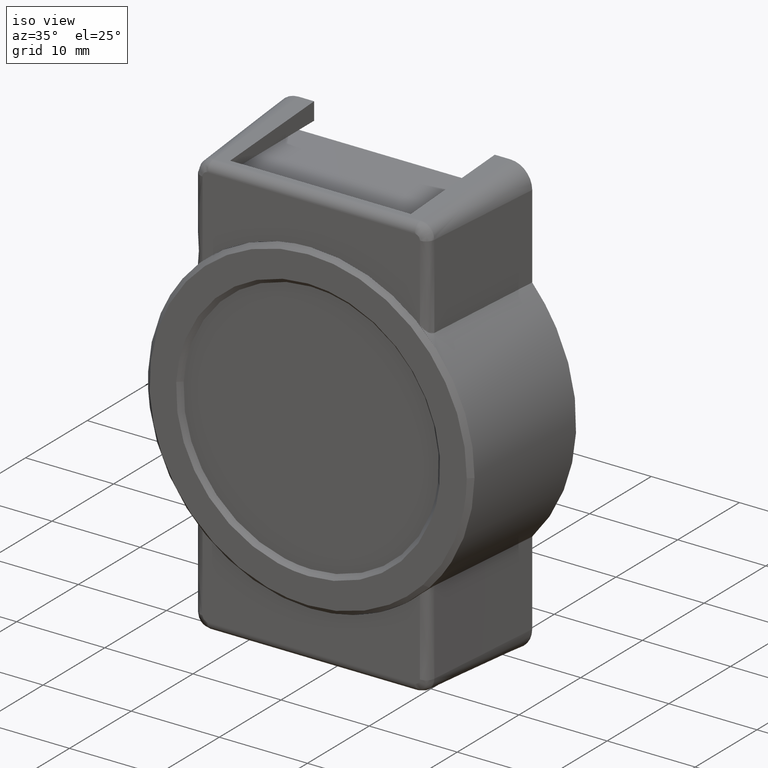
[diagram: clean part render]
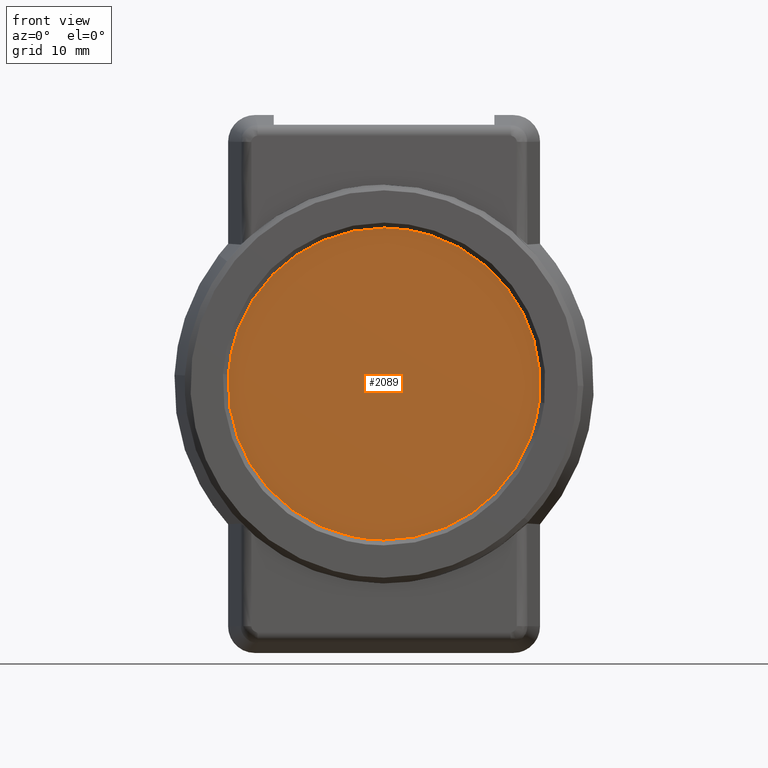
[diagram: tour spotlight — one face highlighted and labeled with its STEP entity id]
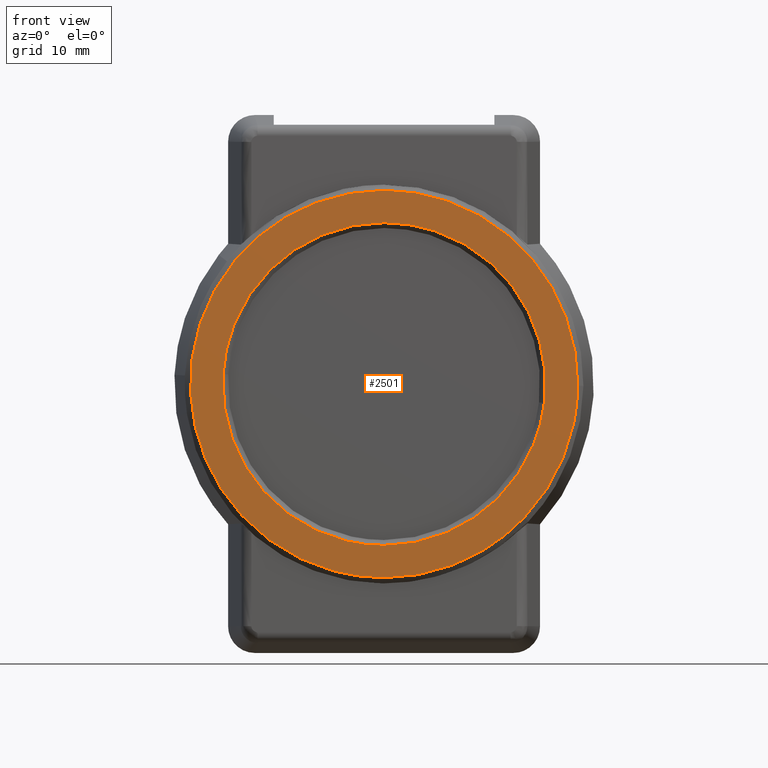
[diagram: tour spotlight — one face highlighted and labeled with its STEP entity id]
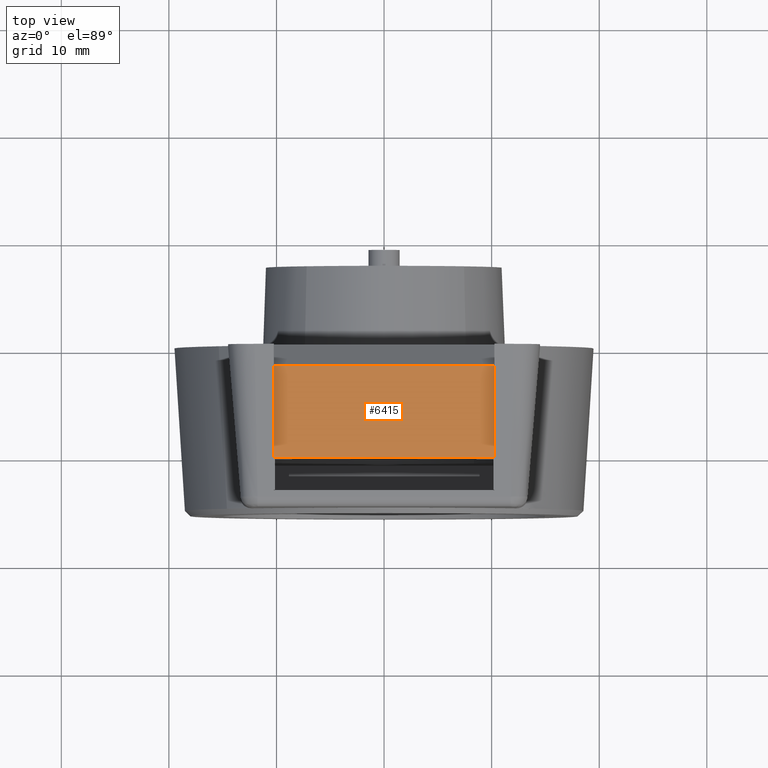
[diagram: tour spotlight — one face highlighted and labeled with its STEP entity id]
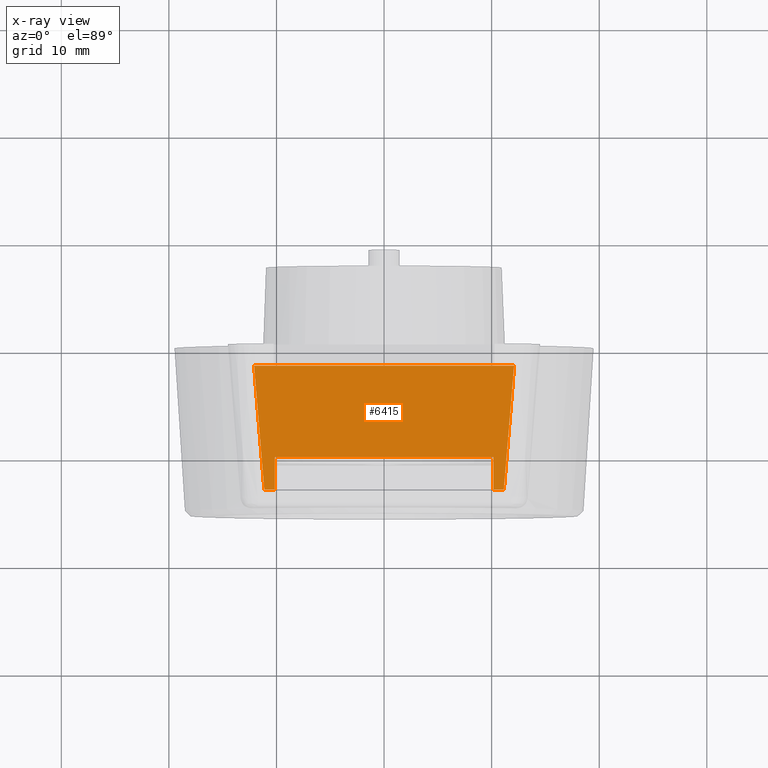
[diagram: x-ray of the same camera — body ghosted, this tour face saturated]
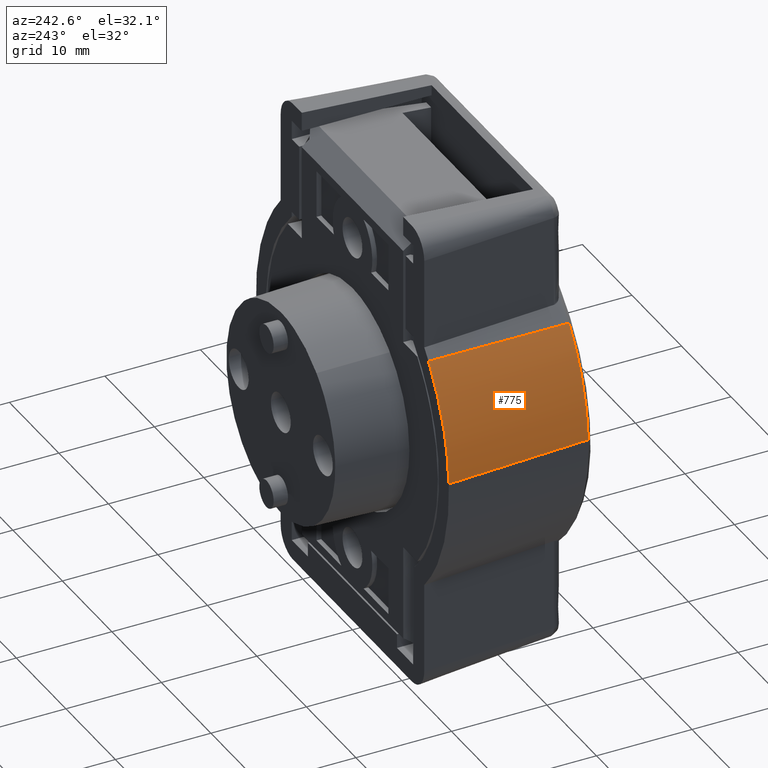
[diagram: tour spotlight — one face highlighted and labeled with its STEP entity id]
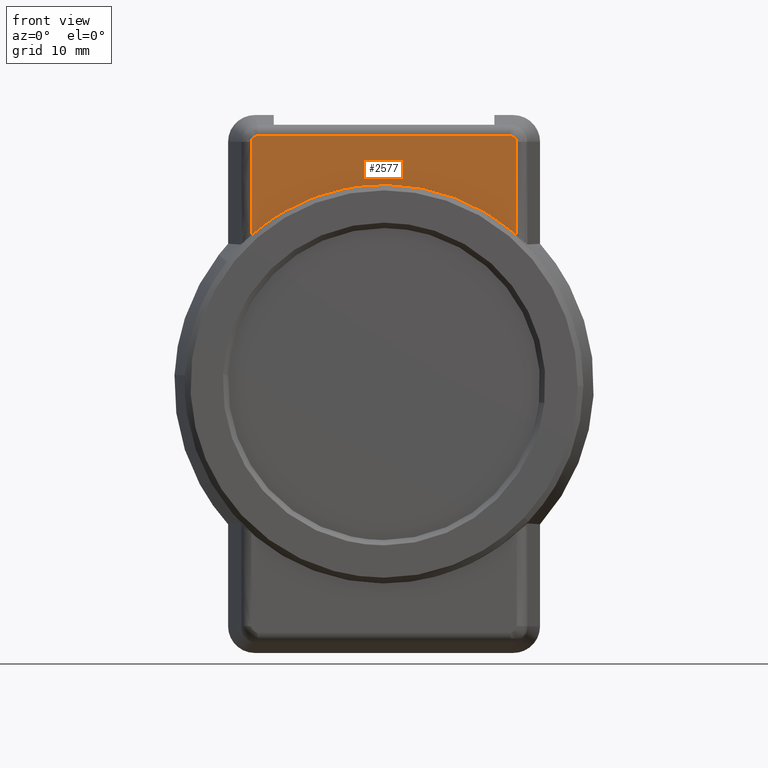
[diagram: tour spotlight — one face highlighted and labeled with its STEP entity id]
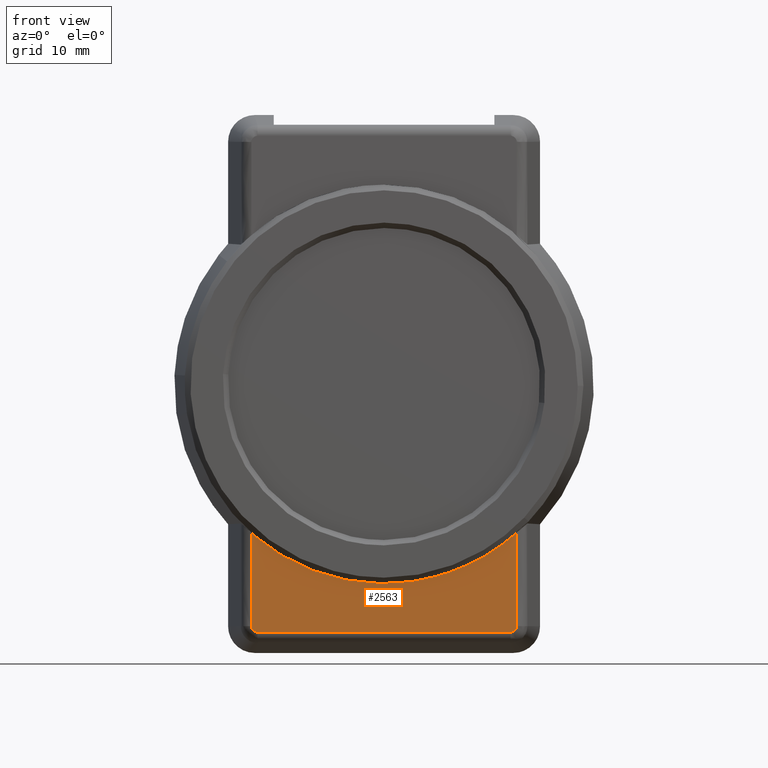
[diagram: tour spotlight — one face highlighted and labeled with its STEP entity id]
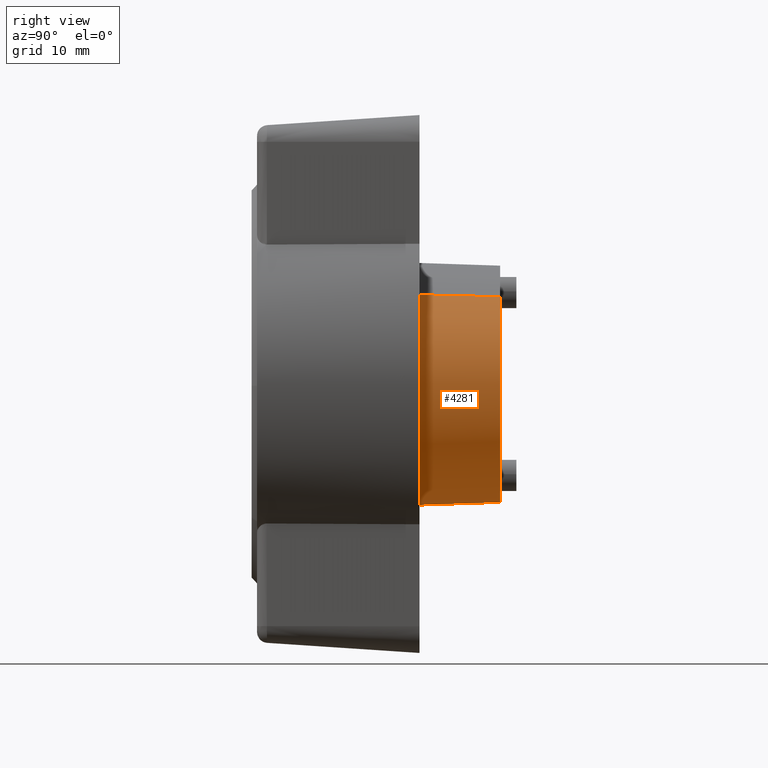
[diagram: tour spotlight — one face highlighted and labeled with its STEP entity id]
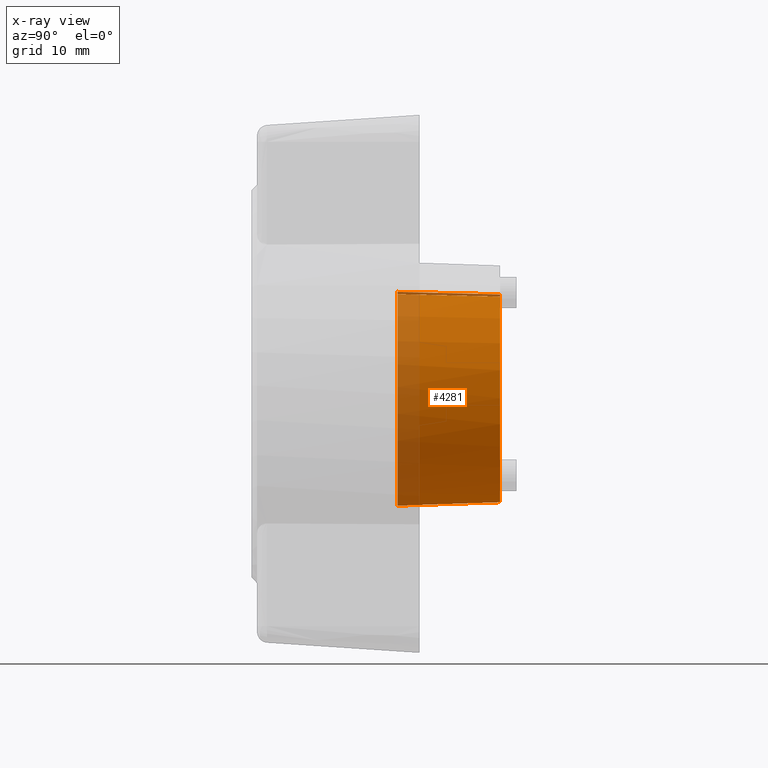
[diagram: x-ray of the same camera — body ghosted, this tour face saturated]
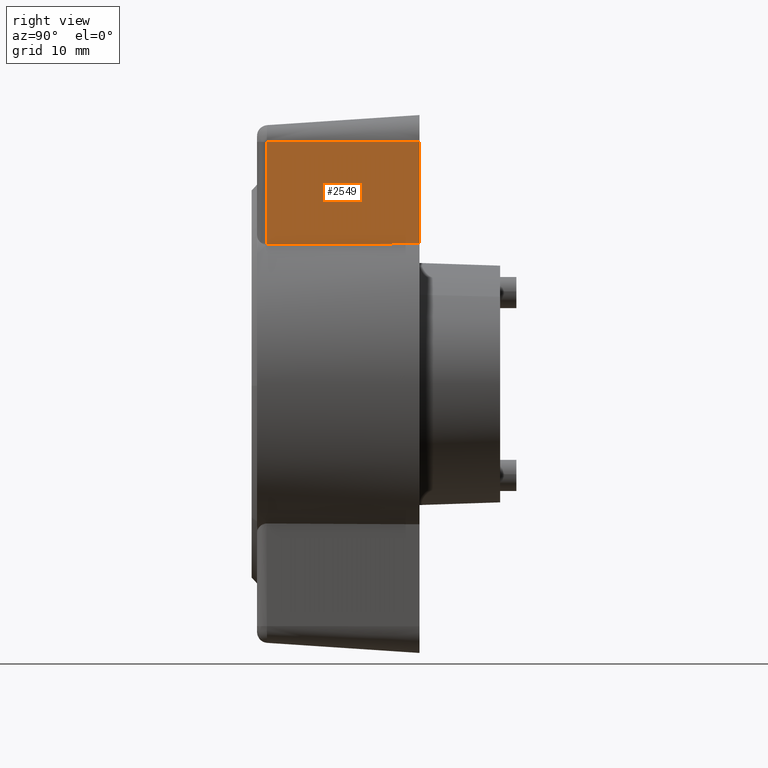
[diagram: tour spotlight — one face highlighted and labeled with its STEP entity id]
A machine part: a face-by-face anatomy tour. The part has 142 B-rep faces; the first image is the clean iso view, then the 8 largest visible faces are spotlighted one at a time (largest first), each with its STEP entity span.

Face 1 — front view, entity #2089. In plain terms, the highlighted face is a freeform B-spline surface patch.
Definition (entity closure, byte-faithful):
#282=CARTESIAN_POINT('',(15.100000000005901,-14.398638132273540,1.711496402569831));
#283=VERTEX_POINT('',#282);
#284=CARTESIAN_POINT('',(15.100000000000000,0.0,-14.500000000000000));
#285=VERTEX_POINT('',#284);
#286=CARTESIAN_POINT('',(15.100000000005910,-14.398638132273542,1.711496402569831));
#287=CARTESIAN_POINT('',(15.100000000000003,-14.500000000000000,0.858749734999319));
#288=CARTESIAN_POINT('',(15.100000000000000,-14.500000000000000,0.0));
#289=CARTESIAN_POINT('',(15.100000000000001,-14.500000000000000,-14.500000000000000));
#290=CARTESIAN_POINT('',(15.100000000000000,0.0,-14.500000000000000));
#298=(BOUNDED_CURVE()B_SPLINE_CURVE(2,(#286,#287,#288,#289,#290),.UNSPECIFIED.,.F.,.U.)B_SPLINE_CURVE_WITH_KNOTS((3,2,3),(0.229562473514561,0.250000000000000,0.500000000000000),.UNSPECIFIED.)CURVE()GEOMETRIC_REPRESENTATION_ITEM()RATIONAL_B_SPLINE_CURVE((0.956026754185763,0.976055948332379,1.0,0.707106781186548,1.0))REPRESENTATION_ITEM(''));
#299=EDGE_CURVE('',#283,#285,#298,.T.);
#340=CARTESIAN_POINT('',(15.100000000011439,14.472954577123209,-0.885203823342351));
#341=VERTEX_POINT('',#340);
#347=CARTESIAN_POINT('',(15.100000000000000,0.0,-14.500000000000000));
#348=CARTESIAN_POINT('',(15.100000000000001,13.640237969969810,-14.500000000000007));
#349=CARTESIAN_POINT('',(15.100000000011438,14.472954577123206,-0.885203823342351));
#357=(BOUNDED_CURVE()B_SPLINE_CURVE(2,(#347,#348,#349),.UNSPECIFIED.,.F.,.U.)B_SPLINE_CURVE_WITH_KNOTS((3,3),(0.500000000000000,0.739332962239913),.UNSPECIFIED.)CURVE()GEOMETRIC_REPRESENTATION_ITEM()RATIONAL_B_SPLINE_CURVE((1.0,0.719603993285573,0.976072041668797))REPRESENTATION_ITEM(''));
#358=EDGE_CURVE('',#285,#341,#357,.T.);
#381=CARTESIAN_POINT('',(15.100000000000000,0.0,14.500000000000000));
#382=VERTEX_POINT('',#381);
#383=CARTESIAN_POINT('',(15.100000000000000,0.0,14.500000000000000));
#384=CARTESIAN_POINT('',(15.099999999999998,-12.878530626211724,14.500000000000002));
#385=CARTESIAN_POINT('',(15.100000000005910,-14.398638132273542,1.711496402569831));
#393=(BOUNDED_CURVE()B_SPLINE_CURVE(2,(#383,#384,#385),.UNSPECIFIED.,.F.,.U.)B_SPLINE_CURVE_WITH_KNOTS((3,3),(0.0,0.229562473514561),.UNSPECIFIED.)CURVE()GEOMETRIC_REPRESENTATION_ITEM()RATIONAL_B_SPLINE_CURVE((1.0,0.731050832854169,0.956026754185763))REPRESENTATION_ITEM(''));
#394=EDGE_CURVE('',#382,#283,#393,.T.);
#396=CARTESIAN_POINT('',(15.100000000011434,14.472954577123211,-0.885203823342351));
#397=CARTESIAN_POINT('',(15.100000000000007,14.500000000000000,-0.443015067916008));
#398=CARTESIAN_POINT('',(15.100000000000000,14.500000000000000,0.0));
#399=CARTESIAN_POINT('',(15.100000000000001,14.500000000000000,14.500000000000000));
#400=CARTESIAN_POINT('',(15.100000000000000,0.0,14.500000000000000));
#408=(BOUNDED_CURVE()B_SPLINE_CURVE(2,(#396,#397,#398,#399,#400),.UNSPECIFIED.,.F.,.U.)B_SPLINE_CURVE_WITH_KNOTS((3,2,3),(0.739332962239912,0.750000000000000,1.0),.UNSPECIFIED.)CURVE()GEOMETRIC_REPRESENTATION_ITEM()RATIONAL_B_SPLINE_CURVE((0.976072041668795,0.987502787900973,1.0,0.707106781186548,1.0))REPRESENTATION_ITEM(''));
#409=EDGE_CURVE('',#341,#382,#408,.T.);
#2078=CARTESIAN_POINT('',(15.100000000000000,-15.948286491302390,15.948549943792370));
#2079=CARTESIAN_POINT('',(15.100000000000000,15.948197039631740,15.948549943792370));
#2080=CARTESIAN_POINT('',(15.100000000000000,-15.948286491302390,-15.948550721632991));
#2081=CARTESIAN_POINT('',(15.100000000000000,15.948197039631740,-15.948550721632991));
#2082=B_SPLINE_SURFACE_WITH_KNOTS('',1,1,((#2078,#2080),(#2079,#2081)),.UNSPECIFIED.,.F.,.F.,.U.,(2,2),(2,2),(0.0,31.896483530934120),(0.0,31.897100665425359),.UNSPECIFIED.);
#2083=ORIENTED_EDGE('',*,*,#394,.T.);
#2084=ORIENTED_EDGE('',*,*,#299,.T.);
#2085=ORIENTED_EDGE('',*,*,#358,.T.);
#2086=ORIENTED_EDGE('',*,*,#409,.T.);
#2087=EDGE_LOOP('',(#2083,#2084,#2085,#2086));
#2088=FACE_OUTER_BOUND('',#2087,.T.);
#2089=ADVANCED_FACE('',(#2088),#2082,.F.);

Face 2 — front view, entity #2501. In plain terms, the highlighted face is a freeform B-spline surface patch.
Definition (entity closure, byte-faithful):
#70=CARTESIAN_POINT('',(15.600000000000000,0.0,18.000000015181751));
#71=VERTEX_POINT('',#70);
#72=CARTESIAN_POINT('',(15.599999999999991,-13.034755842968490,12.413506380581680));
#73=VERTEX_POINT('',#72);
#74=CARTESIAN_POINT('',(15.600000000000000,0.0,18.000000015181751));
#75=CARTESIAN_POINT('',(15.599999999999996,-7.714520066123709,18.000000015181755));
#76=CARTESIAN_POINT('',(15.599999999999994,-13.034755842968488,12.413506380581676));
#84=(BOUNDED_CURVE()B_SPLINE_CURVE(2,(#74,#75,#76),.UNSPECIFIED.,.F.,.U.)B_SPLINE_CURVE_WITH_KNOTS((3,3),(0.500000000000000,0.628682976150469),.UNSPECIFIED.)CURVE()GEOMETRIC_REPRESENTATION_ITEM()RATIONAL_B_SPLINE_CURVE((1.0,0.849238515635177,0.853680523245777))REPRESENTATION_ITEM(''));
#85=EDGE_CURVE('',#71,#73,#84,.T.);
#87=CARTESIAN_POINT('',(15.600000000000000,0.0,-18.000000015181751));
#88=VERTEX_POINT('',#87);
#89=CARTESIAN_POINT('',(15.600000000000000,0.0,-18.000000015181751));
#90=CARTESIAN_POINT('',(15.599999999999998,18.000000015181744,-18.000000015181744));
#91=CARTESIAN_POINT('',(15.600000000000000,18.000000015181751,0.0));
#92=CARTESIAN_POINT('',(15.599999999999998,18.000000015181744,18.000000015181744));
#93=CARTESIAN_POINT('',(15.600000000000000,0.0,18.000000015181751));
#101=(BOUNDED_CURVE()B_SPLINE_CURVE(2,(#89,#90,#91,#92,#93),.UNSPECIFIED.,.F.,.U.)B_SPLINE_CURVE_WITH_KNOTS((3,2,3),(0.0,0.250000000000000,0.500000000000000),.UNSPECIFIED.)CURVE()GEOMETRIC_REPRESENTATION_ITEM()RATIONAL_B_SPLINE_CURVE((1.0,0.707106781186547,1.0,0.707106781186547,1.0))REPRESENTATION_ITEM(''));
#102=EDGE_CURVE('',#88,#71,#101,.T.);
#104=CARTESIAN_POINT('',(15.599999999991510,-17.999314630344742,0.157077639168477));
#105=VERTEX_POINT('',#104);
#106=CARTESIAN_POINT('',(15.599999999991507,-17.999314630344731,0.157077639168477));
#107=CARTESIAN_POINT('',(15.600000000000001,-18.000000015181755,0.078540314904058));
#108=CARTESIAN_POINT('',(15.600000000000000,-18.000000015181751,0.0));
#109=CARTESIAN_POINT('',(15.599999999999998,-18.000000015181744,-18.000000015181744));
#110=CARTESIAN_POINT('',(15.600000000000000,0.0,-18.000000015181751));
#118=(BOUNDED_CURVE()B_SPLINE_CURVE(2,(#106,#107,#108,#109,#110),.UNSPECIFIED.,.F.,.U.)B_SPLINE_CURVE_WITH_KNOTS((3,2,3),(0.748460105663737,0.750000000000000,1.0),.UNSPECIFIED.)CURVE()GEOMETRIC_REPRESENTATION_ITEM()RATIONAL_B_SPLINE_CURVE((0.996414028097453,0.998195901564877,1.0,0.707106781186547,1.0))REPRESENTATION_ITEM(''));
#119=EDGE_CURVE('',#105,#88,#118,.T.);
#229=CARTESIAN_POINT('',(15.599999999999994,-13.034755842968488,12.413506380581676));
#230=CARTESIAN_POINT('',(15.600000000000005,-17.937279233019702,7.265630071941504));
#231=CARTESIAN_POINT('',(15.599999999991507,-17.999314630344735,0.157077639168477));
#239=(BOUNDED_CURVE()B_SPLINE_CURVE(2,(#229,#230,#231),.UNSPECIFIED.,.F.,.U.)B_SPLINE_CURVE_WITH_KNOTS((3,3),(0.628682976150469,0.748460105663737),.UNSPECIFIED.)CURVE()GEOMETRIC_REPRESENTATION_ITEM()RATIONAL_B_SPLINE_CURVE((0.853680523245777,0.857815109939293,0.996414028097453))REPRESENTATION_ITEM(''));
#240=EDGE_CURVE('',#73,#105,#239,.T.);
#301=CARTESIAN_POINT('',(15.600000000008359,-14.895142895455569,1.770513519917547));
#302=VERTEX_POINT('',#301);
#308=CARTESIAN_POINT('',(15.600000000000000,0.0,-15.0));
#309=VERTEX_POINT('',#308);
#310=CARTESIAN_POINT('',(15.600000000008365,-14.895142895455576,1.770513519917547));
#311=CARTESIAN_POINT('',(15.600000000000003,-15.000000000000002,0.888361794844521));
#312=CARTESIAN_POINT('',(15.600000000000000,-15.0,0.0));
#313=CARTESIAN_POINT('',(15.599999999999998,-14.999999999999996,-14.999999999999996));
#314=CARTESIAN_POINT('',(15.600000000000000,0.0,-15.0));
#322=(BOUNDED_CURVE()B_SPLINE_CURVE(2,(#310,#311,#312,#313,#314),.UNSPECIFIED.,.F.,.U.)B_SPLINE_CURVE_WITH_KNOTS((3,2,3),(0.229562473514165,0.250000000000000,0.500000000000000),.UNSPECIFIED.)CURVE()GEOMETRIC_REPRESENTATION_ITEM()RATIONAL_B_SPLINE_CURVE((0.956026754184987,0.976055948331915,1.0,0.707106781186547,1.0))REPRESENTATION_ITEM(''));
#323=EDGE_CURVE('',#302,#309,#322,.T.);
#325=CARTESIAN_POINT('',(15.600000000008070,14.972021976332361,-0.915728093084173));
#326=VERTEX_POINT('',#325);
#327=CARTESIAN_POINT('',(15.600000000000000,0.0,-15.0));
#328=CARTESIAN_POINT('',(15.599999999999996,14.110591003470534,-15.000000000000002));
#329=CARTESIAN_POINT('',(15.600000000008071,14.972021976332364,-0.915728093084173));
#337=(BOUNDED_CURVE()B_SPLINE_CURVE(2,(#327,#328,#329),.UNSPECIFIED.,.F.,.U.)B_SPLINE_CURVE_WITH_KNOTS((3,3),(0.500000000000000,0.739332962240566),.UNSPECIFIED.)CURVE()GEOMETRIC_REPRESENTATION_ITEM()RATIONAL_B_SPLINE_CURVE((1.0,0.719603993284809,0.976072041670196))REPRESENTATION_ITEM(''));
#338=EDGE_CURVE('',#309,#326,#337,.T.);
#412=CARTESIAN_POINT('',(15.600000000000000,0.0,15.0));
#413=VERTEX_POINT('',#412);
#414=CARTESIAN_POINT('',(15.600000000008070,14.972021976332366,-0.915728093084173));
#415=CARTESIAN_POINT('',(15.600000000000007,15.000000000000002,-0.458291449539829));
#416=CARTESIAN_POINT('',(15.600000000000000,15.0,0.0));
#417=CARTESIAN_POINT('',(15.599999999999998,14.999999999999996,14.999999999999996));
#418=CARTESIAN_POINT('',(15.600000000000000,0.0,15.0));
#426=(BOUNDED_CURVE()B_SPLINE_CURVE(2,(#414,#415,#416,#417,#418),.UNSPECIFIED.,.F.,.U.)B_SPLINE_CURVE_WITH_KNOTS((3,2,3),(0.739332962240566,0.750000000000000,1.0),.UNSPECIFIED.)CURVE()GEOMETRIC_REPRESENTATION_ITEM()RATIONAL_B_SPLINE_CURVE((0.976072041670197,0.987502787901739,1.0,0.707106781186547,1.0))REPRESENTATION_ITEM(''));
#427=EDGE_CURVE('',#326,#413,#426,.T.);
#429=CARTESIAN_POINT('',(15.600000000000000,0.0,15.0));
#430=CARTESIAN_POINT('',(15.600000000000007,-13.322617889153088,14.999999999999993));
#431=CARTESIAN_POINT('',(15.600000000008359,-14.895142895455580,1.770513519917547));
#439=(BOUNDED_CURVE()B_SPLINE_CURVE(2,(#429,#430,#431),.UNSPECIFIED.,.F.,.U.)B_SPLINE_CURVE_WITH_KNOTS((3,3),(0.0,0.229562473514165),.UNSPECIFIED.)CURVE()GEOMETRIC_REPRESENTATION_ITEM()RATIONAL_B_SPLINE_CURVE((1.0,0.731050832854633,0.956026754184987))REPRESENTATION_ITEM(''));
#440=EDGE_CURVE('',#413,#302,#439,.T.);
#2484=CARTESIAN_POINT('',(15.600000000000000,-19.797481143772728,-19.798199946923418));
#2485=CARTESIAN_POINT('',(15.600000000000000,19.798166716397510,-19.798199946923418));
#2486=CARTESIAN_POINT('',(15.600000000000000,-19.797481143772728,19.798200912518670));
#2487=CARTESIAN_POINT('',(15.600000000000000,19.798166716397510,19.798200912518670));
#2488=B_SPLINE_SURFACE_WITH_KNOTS('',1,1,((#2484,#2486),(#2485,#2487)),.UNSPECIFIED.,.F.,.F.,.U.,(2,2),(2,2),(0.0,39.595647860170253),(0.0,39.596400859442092),.UNSPECIFIED.);
#2489=ORIENTED_EDGE('',*,*,#102,.T.);
#2490=ORIENTED_EDGE('',*,*,#85,.T.);
#2491=ORIENTED_EDGE('',*,*,#240,.T.);
#2492=ORIENTED_EDGE('',*,*,#119,.T.);
#2493=EDGE_LOOP('',(#2489,#2490,#2491,#2492));
#2494=FACE_OUTER_BOUND('',#2493,.T.);
#2495=ORIENTED_EDGE('',*,*,#338,.F.);
#2496=ORIENTED_EDGE('',*,*,#323,.F.);
#2497=ORIENTED_EDGE('',*,*,#440,.F.);
#2498=ORIENTED_EDGE('',*,*,#427,.F.);
#2499=EDGE_LOOP('',(#2495,#2496,#2497,#2498));
#2500=FACE_BOUND('',#2499,.T.);
#2501=ADVANCED_FACE('',(#2494,#2500),#2488,.T.);

Face 3 — top view, entity #6415. An x-ray twin of the same camera follows (body ghosted, this face saturated) — the face is partly hidden behind the body. In plain terms, the highlighted face is a freeform B-spline surface patch.
Definition (entity closure, byte-faithful):
#6301=CARTESIAN_POINT('',(1.999999999999975,12.084438020025299,-22.750000000000000));
#6302=VERTEX_POINT('',#6301);
#6303=CARTESIAN_POINT('',(1.999999999999975,-12.084438020025480,-22.750000000000000));
#6304=VERTEX_POINT('',#6303);
#6305=CARTESIAN_POINT('',(1.999999999999975,12.084438020025299,-22.750000000000000));
#6306=CARTESIAN_POINT('',(1.999999999999975,-12.084438020025480,-22.750000000000000));
#6307=QUASI_UNIFORM_CURVE('',1,(#6305,#6306),.UNSPECIFIED.,.F.,.U.);
#6308=EDGE_CURVE('',#6302,#6304,#6307,.T.);
#6360=CARTESIAN_POINT('',(14.074424977710770,-13.291673785142271,-21.700050001938202));
#6361=CARTESIAN_POINT('',(1.425574713835168,-13.291673785142271,-22.799950024883898));
#6362=CARTESIAN_POINT('',(14.074424977710770,13.291674001228690,-21.700050001938202));
#6363=CARTESIAN_POINT('',(1.425574713835168,13.291674001228690,-22.799950024883898));
#6364=B_SPLINE_SURFACE_WITH_KNOTS('',1,1,((#6360,#6362),(#6361,#6363)),.UNSPECIFIED.,.F.,.F.,.U.,(2,2),(2,2),(0.0,12.696581943910020),(0.0,26.583347786370961),.UNSPECIFIED.);
#6365=CARTESIAN_POINT('',(13.500000000000000,-11.132456635171360,-21.750000000000000));
#6366=VERTEX_POINT('',#6365);
#6367=CARTESIAN_POINT('',(13.500000000000000,-11.132456635171360,-21.750000000000000));
#6368=CARTESIAN_POINT('',(1.999999999999975,-12.084438020025480,-22.750000000000000));
#6369=QUASI_UNIFORM_CURVE('',1,(#6367,#6368),.UNSPECIFIED.,.F.,.U.);
#6370=EDGE_CURVE('',#6366,#6304,#6369,.T.);
#6371=ORIENTED_EDGE('',*,*,#6370,.T.);
#6372=ORIENTED_EDGE('',*,*,#6308,.F.);
#6373=CARTESIAN_POINT('',(13.500000000000000,11.132456635171360,-21.750000000000000));
#6374=VERTEX_POINT('',#6373);
#6375=CARTESIAN_POINT('',(13.500000000000000,11.132456635171360,-21.750000000000000));
#6376=CARTESIAN_POINT('',(1.999999999999975,12.084438020025299,-22.750000000000000));
#6377=QUASI_UNIFORM_CURVE('',1,(#6375,#6376),.UNSPECIFIED.,.F.,.U.);
#6378=EDGE_CURVE('',#6374,#6302,#6377,.T.);
#6379=ORIENTED_EDGE('',*,*,#6378,.F.);
#6380=CARTESIAN_POINT('',(13.500000000000000,10.150000000000000,-21.750000000000000));
#6381=VERTEX_POINT('',#6380);
#6382=CARTESIAN_POINT('',(13.500000000000000,11.132456635171360,-21.750000000000000));
#6383=CARTESIAN_POINT('',(13.500000000000000,10.150000000000000,-21.750000000000000));
#6384=QUASI_UNIFORM_CURVE('',1,(#6382,#6383),.UNSPECIFIED.,.F.,.U.);
#6385=EDGE_CURVE('',#6374,#6381,#6384,.T.);
#6386=ORIENTED_EDGE('',*,*,#6385,.T.);
#6387=CARTESIAN_POINT('',(10.500000000000000,10.150000000000000,-22.010869565217352));
#6388=VERTEX_POINT('',#6387);
#6389=CARTESIAN_POINT('',(13.500000000000000,10.150000000000000,-21.750000000000000));
#6390=CARTESIAN_POINT('',(10.500000000000000,10.150000000000000,-22.010869565217352));
#6391=QUASI_UNIFORM_CURVE('',1,(#6389,#6390),.UNSPECIFIED.,.F.,.U.);
#6392=EDGE_CURVE('',#6381,#6388,#6391,.T.);
#6393=ORIENTED_EDGE('',*,*,#6392,.T.);
#6394=CARTESIAN_POINT('',(10.500000000000000,-10.149800000000001,-22.010869565217352));
#6395=VERTEX_POINT('',#6394);
#6396=CARTESIAN_POINT('',(10.500000000000000,10.150000000000000,-22.010869565217352));
#6397=CARTESIAN_POINT('',(10.500000000000000,-10.149800000000001,-22.010869565217352));
#6398=QUASI_UNIFORM_CURVE('',1,(#6396,#6397),.UNSPECIFIED.,.F.,.U.);
#6399=EDGE_CURVE('',#6388,#6395,#6398,.T.);
#6400=ORIENTED_EDGE('',*,*,#6399,.T.);
#6401=CARTESIAN_POINT('',(13.500000000000000,-10.149800000000001,-21.750000000000000));
#6402=VERTEX_POINT('',#6401);
#6403=CARTESIAN_POINT('',(10.500000000000000,-10.149800000000001,-22.010869565217352));
#6404=CARTESIAN_POINT('',(13.500000000000000,-10.149800000000001,-21.750000000000000));
#6405=QUASI_UNIFORM_CURVE('',1,(#6403,#6404),.UNSPECIFIED.,.F.,.U.);
#6406=EDGE_CURVE('',#6395,#6402,#6405,.T.);
#6407=ORIENTED_EDGE('',*,*,#6406,.T.);
#6408=CARTESIAN_POINT('',(13.500000000000000,-10.149800000000001,-21.750000000000000));
#6409=CARTESIAN_POINT('',(13.500000000000000,-11.132456635171360,-21.750000000000000));
#6410=QUASI_UNIFORM_CURVE('',1,(#6408,#6409),.UNSPECIFIED.,.F.,.U.);
#6411=EDGE_CURVE('',#6402,#6366,#6410,.T.);
#6412=ORIENTED_EDGE('',*,*,#6411,.T.);
#6413=EDGE_LOOP('',(#6371,#6372,#6379,#6386,#6393,#6400,#6407,#6412));
#6414=FACE_OUTER_BOUND('',#6413,.T.);
#6415=ADVANCED_FACE('',(#6414),#6364,.T.);

Face 4 — auxiliary view, entity #775. In plain terms, the highlighted face is a freeform B-spline surface patch.
Definition (entity closure, byte-faithful):
#145=CARTESIAN_POINT('',(15.101027880630079,14.605309291225071,-11.406990121480259));
#146=VERTEX_POINT('',#145);
#160=CARTESIAN_POINT('',(15.101026955833030,18.514881455720001,-0.796021357418390));
#161=VERTEX_POINT('',#160);
#162=CARTESIAN_POINT('',(15.101026955833035,18.514881455720001,-0.796021357418390));
#163=CARTESIAN_POINT('',(15.101027418231551,18.259853999387865,-6.727775503855035));
#164=CARTESIAN_POINT('',(15.101027880630078,14.605309291225065,-11.406990121480259));
#172=(BOUNDED_CURVE()B_SPLINE_CURVE(2,(#162,#163,#164),.UNSPECIFIED.,.F.,.U.)B_SPLINE_CURVE_WITH_KNOTS((3,3),(0.257529741254510,0.356517249436657),.UNSPECIFIED.)CURVE()GEOMETRIC_REPRESENTATION_ITEM()RATIONAL_B_SPLINE_CURVE((0.982888116147030,0.873902894349520,0.856755178058724))REPRESENTATION_ITEM(''));
#173=EDGE_CURVE('',#161,#146,#172,.T.);
#477=CARTESIAN_POINT('',(0.000002613138607,19.482001581067902,-0.837620356976103));
#478=VERTEX_POINT('',#477);
#479=CARTESIAN_POINT('',(15.101026955833030,18.514881455720001,-0.796021357418390));
#480=CARTESIAN_POINT('',(0.000002613138607,19.482001581067902,-0.837620356976103));
#481=QUASI_UNIFORM_CURVE('',1,(#479,#480),.UNSPECIFIED.,.F.,.U.);
#482=EDGE_CURVE('',#161,#478,#481,.T.);
#716=CARTESIAN_POINT('',(0.000000322504653,15.368211329090830,-12.002836320559391));
#717=VERTEX_POINT('',#716);
#731=CARTESIAN_POINT('',(15.101027880630079,14.605309291225071,-11.406990121480259));
#732=CARTESIAN_POINT('',(0.000000322504653,15.368211329090830,-12.002836320559391));
#733=QUASI_UNIFORM_CURVE('',1,(#731,#732),.UNSPECIFIED.,.F.,.U.);
#734=EDGE_CURVE('',#146,#717,#733,.T.);
#739=CARTESIAN_POINT('',(15.478549732748686,18.492949581332944,-0.742743409091097));
#740=CARTESIAN_POINT('',(15.478549732748677,18.491826885747436,-0.768855931270664));
#741=CARTESIAN_POINT('',(15.478549732748677,18.236003270144554,-6.718999427651289));
#742=CARTESIAN_POINT('',(15.478549732748682,14.567485163414602,-11.416103545355952));
#743=CARTESIAN_POINT('',(15.478549732748679,14.548730562831665,-11.440116596146799));
#744=CARTESIAN_POINT('',(-0.386963743318719,19.509154424548321,-0.783557852793824));
#745=CARTESIAN_POINT('',(-0.386963743318718,19.507970035792308,-0.811105282443977));
#746=CARTESIAN_POINT('',(-0.386963743318718,19.238088673693063,-7.088214718587501));
#747=CARTESIAN_POINT('',(-0.386963743318718,15.367982072327008,-12.043429092447111));
#748=CARTESIAN_POINT('',(-0.386963743318718,15.348196888934053,-12.068761682795815));
#756=(BOUNDED_SURFACE()B_SPLINE_SURFACE(2,1,((#739,#744),(#740,#745),(#741,#746),(#742,#747),(#743,#748)),.UNSPECIFIED.,.F.,.F.,.U.)B_SPLINE_SURFACE_WITH_KNOTS((3,1,1,3),(2,2),(0.0,0.064314814441409,12.923028356025560,12.987323780913870),(0.0,15.898077207977570),.UNSPECIFIED.)GEOMETRIC_REPRESENTATION_ITEM()RATIONAL_B_SPLINE_SURFACE(((1.001171960038348,1.001171960038348),(1.000585980019174,1.000585980019174),(0.882842712474619,0.882842712474619),(0.859294094297819,0.859294094297819),(0.859176933626094,0.859176933626094)))REPRESENTATION_ITEM('')SURFACE());
#757=ORIENTED_EDGE('',*,*,#173,.T.);
#758=ORIENTED_EDGE('',*,*,#734,.T.);
#759=CARTESIAN_POINT('',(0.000000322504653,15.368211329090832,-12.002836320559382));
#760=CARTESIAN_POINT('',(0.000001467821630,19.213647134893662,-7.079210798616050));
#761=CARTESIAN_POINT('',(0.000002613138607,19.482001581067895,-0.837620356976103));
#769=(BOUNDED_CURVE()B_SPLINE_CURVE(2,(#759,#760,#761),.UNSPECIFIED.,.F.,.U.)B_SPLINE_CURVE_WITH_KNOTS((3,3),(0.051173309590706,0.471983908225164),.UNSPECIFIED.)CURVE()GEOMETRIC_REPRESENTATION_ITEM()RATIONAL_B_SPLINE_CURVE((0.975100204114749,0.878243266538206,0.872197385332480))REPRESENTATION_ITEM(''));
#770=EDGE_CURVE('',#717,#478,#769,.T.);
#771=ORIENTED_EDGE('',*,*,#770,.T.);
#772=ORIENTED_EDGE('',*,*,#482,.F.);
#773=EDGE_LOOP('',(#757,#758,#771,#772));
#774=FACE_OUTER_BOUND('',#773,.T.);
#775=ADVANCED_FACE('',(#774),#756,.T.);

Face 5 — front view, entity #2577. In plain terms, the highlighted face is a freeform B-spline surface patch.
Definition (entity closure, byte-faithful):
#630=CARTESIAN_POINT('',(15.100000000000000,-12.329367544924621,-13.835592549919941));
#631=VERTEX_POINT('',#630);
#659=CARTESIAN_POINT('',(15.100000000000000,12.329367544924621,-13.835592549919960));
#660=VERTEX_POINT('',#659);
#661=CARTESIAN_POINT('',(15.100000000000000,-12.329367544924640,-13.835592549919960));
#662=CARTESIAN_POINT('',(15.100000000000005,-1.528363E-014,-24.822711714449014));
#663=CARTESIAN_POINT('',(15.100000000000000,12.329367544924629,-13.835592549919980));
#671=(BOUNDED_CURVE()B_SPLINE_CURVE(2,(#661,#662,#663),.UNSPECIFIED.,.F.,.U.)CURVE()GEOMETRIC_REPRESENTATION_ITEM()QUASI_UNIFORM_CURVE()RATIONAL_B_SPLINE_CURVE((1.0,0.746576422025606,1.0))REPRESENTATION_ITEM(''));
#672=EDGE_CURVE('',#631,#660,#671,.T.);
#856=CARTESIAN_POINT('',(15.100000000000000,-12.329367544924621,-22.504391323943601));
#857=VERTEX_POINT('',#856);
#912=CARTESIAN_POINT('',(15.100000000000000,-11.769492727107981,-23.064180374541650));
#913=VERTEX_POINT('',#912);
#927=CARTESIAN_POINT('',(15.100000000000000,-12.329367544924621,-22.504391323943601));
#928=CARTESIAN_POINT('',(15.100000000000010,-12.329367544924621,-22.541338459476069));
#929=CARTESIAN_POINT('',(15.100000000000010,-12.325702628734510,-22.577876547202489));
#930=CARTESIAN_POINT('',(15.100000000000010,-12.311143935628820,-22.650145896669041));
#931=CARTESIAN_POINT('',(15.100000000000010,-12.300326595793241,-22.685289790405889));
#932=CARTESIAN_POINT('',(15.100000000000010,-12.279284148694019,-22.735696123779270));
#933=CARTESIAN_POINT('',(15.100000000000000,-12.271451579797411,-22.752160061605569));
#934=CARTESIAN_POINT('',(15.100000000000000,-12.254127888079500,-22.784402618296710));
#935=CARTESIAN_POINT('',(15.100000000000000,-12.244577236302661,-22.800265201591749));
#936=CARTESIAN_POINT('',(15.100000000000010,-12.213832881846191,-22.846059800428240));
#937=CARTESIAN_POINT('',(15.100000000000000,-12.190648172778699,-22.874186101895290));
#938=CARTESIAN_POINT('',(15.100000000000000,-12.139036577604610,-22.925752322489618));
#939=CARTESIAN_POINT('',(15.100000000000000,-12.110267202735200,-22.949372723645489));
#940=CARTESIAN_POINT('',(15.100000000000000,-12.049493629092810,-22.990010212532930));
#941=CARTESIAN_POINT('',(15.100000000000000,-12.017390991615301,-23.007230685228429));
#942=CARTESIAN_POINT('',(15.100000000000000,-11.966632669739830,-23.028358751582939));
#943=CARTESIAN_POINT('',(15.100000000000000,-11.949182933062589,-23.034634735488879));
#944=CARTESIAN_POINT('',(15.100000000000000,-11.914064383578090,-23.045336317760640));
#945=CARTESIAN_POINT('',(15.100000000000010,-11.896351828559411,-23.049790713315168));
#946=CARTESIAN_POINT('',(15.100000000000010,-11.842763351792010,-23.060517516254109));
#947=CARTESIAN_POINT('',(15.100000000000000,-11.806441206952440,-23.064180374541799));
#948=CARTESIAN_POINT('',(15.100000000000000,-11.769492727107981,-23.064180374541650));
#949=B_SPLINE_CURVE_WITH_KNOTS('',3,(#927,#928,#929,#930,#931,#932,#933,#934,#935,#936,#937,#938,#939,#940,#941,#942,#943,#944,#945,#946,#947,#948),.UNSPECIFIED.,.F.,.U.,(4,2,2,2,2,2,2,2,2,2,4),(0.0,0.125000000000012,0.250000000000024,0.312500000000025,0.375000000000025,0.500000000000020,0.625000000000014,0.750000000000009,0.812500000000006,0.875000000000003,1.0),.UNSPECIFIED.);
#950=EDGE_CURVE('',#857,#913,#949,.T.);
#971=CARTESIAN_POINT('',(15.100000000000000,11.769492727107959,-23.064180374541650));
#972=VERTEX_POINT('',#971);
#986=CARTESIAN_POINT('',(15.100000000000000,-11.769492727107981,-23.064180374541650));
#987=CARTESIAN_POINT('',(15.100000000000000,11.769492727107959,-23.064180374541650));
#988=QUASI_UNIFORM_CURVE('',1,(#986,#987),.UNSPECIFIED.,.F.,.U.);
#989=EDGE_CURVE('',#913,#972,#988,.T.);
#1021=CARTESIAN_POINT('',(15.100000000000000,-12.329367544924621,-13.835592549919941));
#1022=CARTESIAN_POINT('',(15.100000000000000,-12.329367544924621,-22.504391323943601));
#1023=QUASI_UNIFORM_CURVE('',1,(#1021,#1022),.UNSPECIFIED.,.F.,.U.);
#1024=EDGE_CURVE('',#631,#857,#1023,.T.);
#1075=CARTESIAN_POINT('',(15.100000000000000,12.329367544924621,-22.504391323943452));
#1076=VERTEX_POINT('',#1075);
#1090=CARTESIAN_POINT('',(15.100000000000000,11.769492727107959,-23.064180374541600));
#1091=CARTESIAN_POINT('',(15.100000000000000,11.806439604264771,-23.064180374541600));
#1092=CARTESIAN_POINT('',(15.100000000000000,11.842977187038340,-23.060517153734128));
#1093=CARTESIAN_POINT('',(15.099999999999991,11.915245093426391,-23.045965671489050));
#1094=CARTESIAN_POINT('',(15.099999999999991,11.950393704485959,-23.035152141146948));
#1095=CARTESIAN_POINT('',(15.099999999999991,12.000803530798679,-23.014117872482029));
#1096=CARTESIAN_POINT('',(15.100000000000000,12.017268594852750,-23.006288355645999));
#1097=CARTESIAN_POINT('',(15.100000000000000,12.049513354730630,-22.988971496044691));
#1098=CARTESIAN_POINT('',(15.100000000000000,12.065376856171749,-22.979424839251749));
#1099=CARTESIAN_POINT('',(15.100000000000000,12.111180222947601,-22.948688958853740));
#1100=CARTESIAN_POINT('',(15.100000000000000,12.139312266342730,-22.925510198793081));
#1101=CARTESIAN_POINT('',(15.100000000000000,12.190889756735400,-22.873911071890440));
#1102=CARTESIAN_POINT('',(15.100000000000000,12.214516450448190,-22.845147719260041));
#1103=CARTESIAN_POINT('',(15.100000000000010,12.255167760171650,-22.784381489265531));
#1104=CARTESIAN_POINT('',(15.100000000000010,12.272394402858950,-22.752282123008889));
#1105=CARTESIAN_POINT('',(15.100000000000010,12.293530417018570,-22.701527998381820));
#1106=CARTESIAN_POINT('',(15.099999999999991,12.299808947355331,-22.684079304655882));
#1107=CARTESIAN_POINT('',(15.099999999999991,12.310515181856429,-22.648961600531020));
#1108=CARTESIAN_POINT('',(15.099999999999991,12.314971522069360,-22.631249393992341));
#1109=CARTESIAN_POINT('',(15.099999999999991,12.325703031913161,-22.577661743551911));
#1110=CARTESIAN_POINT('',(15.100000000000000,12.329367544924621,-22.541339861057590));
#1111=CARTESIAN_POINT('',(15.100000000000000,12.329367544924621,-22.504391323943452));
#1112=B_SPLINE_CURVE_WITH_KNOTS('',3,(#1090,#1091,#1092,#1093,#1094,#1095,#1096,#1097,#1098,#1099,#1100,#1101,#1102,#1103,#1104,#1105,#1106,#1107,#1108,#1109,#1110,#1111),.UNSPECIFIED.,.F.,.U.,(4,2,2,2,2,2,2,2,2,2,4),(0.0,0.125000000000003,0.250000000000006,0.312500000000008,0.375000000000009,0.500000000000013,0.625000000000016,0.750000000000019,0.812500000000014,0.875000000000009,1.0),.UNSPECIFIED.);
#1113=EDGE_CURVE('',#972,#1076,#1112,.T.);
#1171=CARTESIAN_POINT('',(15.100000000000000,12.329367544924621,-22.504391323943452));
#1172=CARTESIAN_POINT('',(15.100000000000000,12.329367544924621,-13.835592549919960));
#1173=QUASI_UNIFORM_CURVE('',1,(#1171,#1172),.UNSPECIFIED.,.F.,.U.);
#1174=EDGE_CURVE('',#1076,#660,#1173,.T.);
#2564=CARTESIAN_POINT('',(15.100000000000000,13.561071546347740,-23.525148318494711));
#2565=CARTESIAN_POINT('',(15.100000000000000,-13.561071987280290,-23.525148318494711));
#2566=CARTESIAN_POINT('',(15.100000000000000,13.561071546347740,-13.374624358436870));
#2567=CARTESIAN_POINT('',(15.100000000000000,-13.561071987280290,-13.374624358436870));
#2568=B_SPLINE_SURFACE_WITH_KNOTS('',1,1,((#2564,#2566),(#2565,#2567)),.UNSPECIFIED.,.F.,.F.,.U.,(2,2),(2,2),(0.0,27.122143533628030),(0.0,10.150523960057850),.UNSPECIFIED.);
#2569=ORIENTED_EDGE('',*,*,#672,.F.);
#2570=ORIENTED_EDGE('',*,*,#1024,.T.);
#2571=ORIENTED_EDGE('',*,*,#950,.T.);
#2572=ORIENTED_EDGE('',*,*,#989,.T.);
#2573=ORIENTED_EDGE('',*,*,#1113,.T.);
#2574=ORIENTED_EDGE('',*,*,#1174,.T.);
#2575=EDGE_LOOP('',(#2569,#2570,#2571,#2572,#2573,#2574));
#2576=FACE_OUTER_BOUND('',#2575,.T.);
#2577=ADVANCED_FACE('',(#2576),#2568,.F.);

Face 6 — front view, entity #2563. In plain terms, the highlighted face is a freeform B-spline surface patch.
Definition (entity closure, byte-faithful):
#514=CARTESIAN_POINT('',(15.100000000000000,12.329367544924621,13.835592549919960));
#515=VERTEX_POINT('',#514);
#543=CARTESIAN_POINT('',(15.100000000000000,-12.329367544924621,13.835592549919941));
#544=VERTEX_POINT('',#543);
#545=CARTESIAN_POINT('',(15.100000000000000,12.329367544924640,13.835592549919969));
#546=CARTESIAN_POINT('',(15.100000000000005,-1.007946E-014,24.822711714449028));
#547=CARTESIAN_POINT('',(15.100000000000000,-12.329367544924640,13.835592549919960));
#555=(BOUNDED_CURVE()B_SPLINE_CURVE(2,(#545,#546,#547),.UNSPECIFIED.,.F.,.U.)CURVE()GEOMETRIC_REPRESENTATION_ITEM()QUASI_UNIFORM_CURVE()RATIONAL_B_SPLINE_CURVE((1.0,0.746576422025606,1.0))REPRESENTATION_ITEM(''));
#556=EDGE_CURVE('',#515,#544,#555,.T.);
#1229=CARTESIAN_POINT('',(15.100000000000000,12.329367544924621,22.504391323943601));
#1230=VERTEX_POINT('',#1229);
#1285=CARTESIAN_POINT('',(15.100000000000000,11.769492727107959,23.064180374541600));
#1286=VERTEX_POINT('',#1285);
#1300=CARTESIAN_POINT('',(15.100000000000000,12.329367544924621,22.504391323943601));
#1301=CARTESIAN_POINT('',(15.100000000000010,12.329367544924629,22.541338459476069));
#1302=CARTESIAN_POINT('',(15.100000000000000,12.325702628734510,22.577876547202489));
#1303=CARTESIAN_POINT('',(15.100000000000000,12.311143935628809,22.650145896669031));
#1304=CARTESIAN_POINT('',(15.100000000000000,12.300326595793241,22.685289790405879));
#1305=CARTESIAN_POINT('',(15.099999999999991,12.279284148694019,22.735696123779270));
#1306=CARTESIAN_POINT('',(15.100000000000010,12.271451579797411,22.752160061605569));
#1307=CARTESIAN_POINT('',(15.100000000000010,12.254127888079500,22.784402618296710));
#1308=CARTESIAN_POINT('',(15.100000000000000,12.244577236302650,22.800265201591760));
#1309=CARTESIAN_POINT('',(15.100000000000000,12.213832881846180,22.846059800428250));
#1310=CARTESIAN_POINT('',(15.100000000000000,12.190648172778699,22.874186101895301));
#1311=CARTESIAN_POINT('',(15.100000000000000,12.139036577604600,22.925752322489629));
#1312=CARTESIAN_POINT('',(15.099999999999991,12.110267202735191,22.949372723645489));
#1313=CARTESIAN_POINT('',(15.099999999999991,12.049493629092790,22.990010212532919));
#1314=CARTESIAN_POINT('',(15.100000000000000,12.017390991615290,23.007230685228429));
#1315=CARTESIAN_POINT('',(15.100000000000000,11.966632669739820,23.028358751582932));
#1316=CARTESIAN_POINT('',(15.100000000000000,11.949182933062581,23.034634735488890));
#1317=CARTESIAN_POINT('',(15.100000000000000,11.914064383578079,23.045336317760640));
#1318=CARTESIAN_POINT('',(15.100000000000000,11.896351828559400,23.049790713315151));
#1319=CARTESIAN_POINT('',(15.100000000000000,11.842763351792000,23.060517516254109));
#1320=CARTESIAN_POINT('',(15.100000000000000,11.806441206952419,23.064180374541749));
#1321=CARTESIAN_POINT('',(15.100000000000000,11.769492727107959,23.064180374541600));
#1322=B_SPLINE_CURVE_WITH_KNOTS('',3,(#1300,#1301,#1302,#1303,#1304,#1305,#1306,#1307,#1308,#1309,#1310,#1311,#1312,#1313,#1314,#1315,#1316,#1317,#1318,#1319,#1320,#1321),.UNSPECIFIED.,.F.,.U.,(4,2,2,2,2,2,2,2,2,2,4),(0.0,0.124999999999987,0.249999999999973,0.312499999999972,0.374999999999971,0.499999999999978,0.624999999999985,0.749999999999993,0.812499999999994,0.874999999999995,1.0),.UNSPECIFIED.);
#1323=EDGE_CURVE('',#1230,#1286,#1322,.T.);
#1344=CARTESIAN_POINT('',(15.100000000000000,-11.769492727107959,23.064180374541600));
#1345=VERTEX_POINT('',#1344);
#1359=CARTESIAN_POINT('',(15.100000000000000,11.769492727107959,23.064180374541600));
#1360=CARTESIAN_POINT('',(15.100000000000000,-11.769492727107959,23.064180374541600));
#1361=QUASI_UNIFORM_CURVE('',1,(#1359,#1360),.UNSPECIFIED.,.F.,.U.);
#1362=EDGE_CURVE('',#1286,#1345,#1361,.T.);
#1394=CARTESIAN_POINT('',(15.100000000000000,12.329367544924621,13.835592549919960));
#1395=CARTESIAN_POINT('',(15.100000000000000,12.329367544924621,22.504391323943601));
#1396=QUASI_UNIFORM_CURVE('',1,(#1394,#1395),.UNSPECIFIED.,.F.,.U.);
#1397=EDGE_CURVE('',#515,#1230,#1396,.T.);
#1448=CARTESIAN_POINT('',(15.100000000000000,-12.329367544924621,22.504391323943551));
#1449=VERTEX_POINT('',#1448);
#1463=CARTESIAN_POINT('',(15.100000000000000,-11.769492727107959,23.064180374541600));
#1464=CARTESIAN_POINT('',(15.100000000000000,-11.806439604264771,23.064180374541699));
#1465=CARTESIAN_POINT('',(15.100000000000000,-11.842977187038340,23.060517153734231));
#1466=CARTESIAN_POINT('',(15.099999999999991,-11.915245093426400,23.045965671489149));
#1467=CARTESIAN_POINT('',(15.100000000000000,-11.950393704485970,23.035152141147030));
#1468=CARTESIAN_POINT('',(15.100000000000000,-12.000803530798690,23.014117872482121));
#1469=CARTESIAN_POINT('',(15.100000000000010,-12.017268594852760,23.006288355646092));
#1470=CARTESIAN_POINT('',(15.100000000000019,-12.049513354730641,22.988971496044790));
#1471=CARTESIAN_POINT('',(15.100000000000000,-12.065376856171740,22.979424839251831));
#1472=CARTESIAN_POINT('',(15.100000000000010,-12.111180222947601,22.948688958853818));
#1473=CARTESIAN_POINT('',(15.100000000000000,-12.139312266342730,22.925510198793170));
#1474=CARTESIAN_POINT('',(15.099999999999991,-12.190889756735400,22.873911071890529));
#1475=CARTESIAN_POINT('',(15.100000000000010,-12.214516450448180,22.845147719260140));
#1476=CARTESIAN_POINT('',(15.100000000000010,-12.255167760171650,22.784381489265620));
#1477=CARTESIAN_POINT('',(15.100000000000010,-12.272394402858950,22.752282123008989));
#1478=CARTESIAN_POINT('',(15.100000000000000,-12.293530417018561,22.701527998381909));
#1479=CARTESIAN_POINT('',(15.100000000000000,-12.299808947355331,22.684079304655992));
#1480=CARTESIAN_POINT('',(15.100000000000000,-12.310515181856429,22.648961600531109));
#1481=CARTESIAN_POINT('',(15.100000000000000,-12.314971522069360,22.631249393992441));
#1482=CARTESIAN_POINT('',(15.100000000000010,-12.325703031913170,22.577661743552010));
#1483=CARTESIAN_POINT('',(15.100000000000000,-12.329367544924621,22.541339861057700));
#1484=CARTESIAN_POINT('',(15.100000000000000,-12.329367544924621,22.504391323943551));
#1485=B_SPLINE_CURVE_WITH_KNOTS('',3,(#1463,#1464,#1465,#1466,#1467,#1468,#1469,#1470,#1471,#1472,#1473,#1474,#1475,#1476,#1477,#1478,#1479,#1480,#1481,#1482,#1483,#1484),.UNSPECIFIED.,.F.,.U.,(4,2,2,2,2,2,2,2,2,2,4),(0.0,0.124999999999997,0.249999999999994,0.312499999999993,0.374999999999991,0.499999999999993,0.624999999999995,0.749999999999997,0.812499999999998,0.874999999999999,1.0),.UNSPECIFIED.);
#1486=EDGE_CURVE('',#1345,#1449,#1485,.T.);
#1544=CARTESIAN_POINT('',(15.100000000000000,-12.329367544924621,22.504391323943551));
#1545=CARTESIAN_POINT('',(15.100000000000000,-12.329367544924621,13.835592549919941));
#1546=QUASI_UNIFORM_CURVE('',1,(#1544,#1545),.UNSPECIFIED.,.F.,.U.);
#1547=EDGE_CURVE('',#1449,#544,#1546,.T.);
#2550=CARTESIAN_POINT('',(15.100000000000000,13.561071546347740,13.374624259441370));
#2551=CARTESIAN_POINT('',(15.100000000000000,-13.561071987280290,13.374624259441370));
#2552=CARTESIAN_POINT('',(15.100000000000000,13.561071546347740,23.525148582510170));
#2553=CARTESIAN_POINT('',(15.100000000000000,-13.561071987280290,23.525148582510170));
#2554=B_SPLINE_SURFACE_WITH_KNOTS('',1,1,((#2550,#2552),(#2551,#2553)),.UNSPECIFIED.,.F.,.F.,.U.,(2,2),(2,2),(0.0,27.122143533628030),(0.0,10.150524323068810),.UNSPECIFIED.);
#2555=ORIENTED_EDGE('',*,*,#556,.F.);
#2556=ORIENTED_EDGE('',*,*,#1397,.T.);
#2557=ORIENTED_EDGE('',*,*,#1323,.T.);
#2558=ORIENTED_EDGE('',*,*,#1362,.T.);
#2559=ORIENTED_EDGE('',*,*,#1486,.T.);
#2560=ORIENTED_EDGE('',*,*,#1547,.T.);
#2561=EDGE_LOOP('',(#2555,#2556,#2557,#2558,#2559,#2560));
#2562=FACE_OUTER_BOUND('',#2561,.T.);
#2563=ADVANCED_FACE('',(#2562),#2554,.F.);

Face 7 — right view, entity #4281. An x-ray twin of the same camera follows (body ghosted, this face saturated) — the face is partly hidden behind the body. In plain terms, the highlighted face is a freeform B-spline surface patch.
Definition (entity closure, byte-faithful):
#4141=CARTESIAN_POINT('',(-7.738332870762065,7.192537872066245,-8.312200950066599));
#4142=CARTESIAN_POINT('',(-7.738332870762064,7.674029003727013,-7.895567230509281));
#4143=CARTESIAN_POINT('',(-7.738332870762065,8.104193457437097,-7.426125105317648));
#4144=CARTESIAN_POINT('',(-7.738332870762065,15.530318562754747,0.678068352119449));
#4145=CARTESIAN_POINT('',(-7.738332870762065,7.426125105317648,8.104193457437097));
#4146=CARTESIAN_POINT('',(-7.738332870762065,-0.678068352119449,15.530318562754747));
#4147=CARTESIAN_POINT('',(-7.738332870762065,-8.104193457437097,7.426125105317648));
#4148=CARTESIAN_POINT('',(-7.738332870762065,-15.530318562754747,-0.678068352119449));
#4149=CARTESIAN_POINT('',(-7.738332870762065,-7.426125105317648,-8.104193457437097));
#4150=CARTESIAN_POINT('',(2.277606023013659,7.410998739409946,-8.564669642117439));
#4151=CARTESIAN_POINT('',(2.277606023013659,7.907114329379016,-8.135381395693798));
#4152=CARTESIAN_POINT('',(2.277606023013659,8.350344282545544,-7.651680779874629));
#4153=CARTESIAN_POINT('',(2.277606023013659,16.002025062420170,0.698663502670915));
#4154=CARTESIAN_POINT('',(2.277606023013659,7.651680779874629,8.350344282545544));
#4155=CARTESIAN_POINT('',(2.277606023013659,-0.698663502670915,16.002025062420170));
#4156=CARTESIAN_POINT('',(2.277606023013659,-8.350344282545544,7.651680779874629));
#4157=CARTESIAN_POINT('',(2.277606023013659,-16.002025062420170,-0.698663502670915));
#4158=CARTESIAN_POINT('',(2.277606023013659,-7.651680779874629,-8.350344282545544));
#4166=(BOUNDED_SURFACE()B_SPLINE_SURFACE(2,1,((#4141,#4150),(#4142,#4151),(#4143,#4152),(#4144,#4153),(#4145,#4154),(#4146,#4155),(#4147,#4156),(#4148,#4157),(#4149,#4158)),.UNSPECIFIED.,.F.,.F.,.U.)B_SPLINE_SURFACE_WITH_KNOTS((3,2,2,2,3),(2,2),(0.0,1.501231921124202,20.266630935176739,39.032029949229269,57.797428963281803),(0.0,10.021501759460790),.UNSPECIFIED.)GEOMETRIC_REPRESENTATION_ITEM()RATIONAL_B_SPLINE_SURFACE(((0.956886118190660,0.956886118190660),(0.976568542494924,0.976568542494924),(1.0,1.0),(0.707106781186548,0.707106781186548),(1.0,1.0),(0.707106781186548,0.707106781186548),(1.0,1.0),(0.707106781186548,0.707106781186548),(1.0,1.0)))REPRESENTATION_ITEM('')SURFACE());
#4167=CARTESIAN_POINT('',(2.033314830482544,11.314202885699389,-0.284416820262896));
#4168=VERTEX_POINT('',#4167);
#4169=CARTESIAN_POINT('',(2.033312779554715,7.405668700728688,-8.558513271239818));
#4170=VERTEX_POINT('',#4169);
#4171=CARTESIAN_POINT('',(2.033314830482544,11.314202885699391,-0.284416820262896));
#4172=CARTESIAN_POINT('',(2.033313804999064,11.188491946920552,-5.285242033582703));
#4173=CARTESIAN_POINT('',(2.033312779554715,7.405668700728689,-8.558513271239818));
#4181=(BOUNDED_CURVE()B_SPLINE_CURVE(2,(#4171,#4172,#4173),.UNSPECIFIED.,.F.,.U.)B_SPLINE_CURVE_WITH_KNOTS((3,3),(0.254420108230197,0.385882149607838),.UNSPECIFIED.)CURVE()GEOMETRIC_REPRESENTATION_ITEM()RATIONAL_B_SPLINE_CURVE((0.989826157681567,0.841254983146036,0.854663302932841))REPRESENTATION_ITEM(''));
#4182=EDGE_CURVE('',#4168,#4170,#4181,.T.);
#4183=ORIENTED_EDGE('',*,*,#4182,.T.);
#4184=CARTESIAN_POINT('',(-7.500000053919885,7.197736181707841,-8.318208570298857));
#4185=VERTEX_POINT('',#4184);
#4186=CARTESIAN_POINT('',(-7.500000053919885,7.197736181707841,-8.318208570298857));
#4187=CARTESIAN_POINT('',(2.033312779554715,7.405668700728688,-8.558513271239818));
#4188=QUASI_UNIFORM_CURVE('',1,(#4186,#4187),.UNSPECIFIED.,.F.,.U.);
#4189=EDGE_CURVE('',#4185,#4170,#4188,.T.);
#4190=ORIENTED_EDGE('',*,*,#4189,.F.);
#4191=CARTESIAN_POINT('',(-7.500000000000000,0.0,11.0));
#4192=VERTEX_POINT('',#4191);
#4193=CARTESIAN_POINT('',(-7.500000000000000,0.0,11.0));
#4194=CARTESIAN_POINT('',(-7.500000000000000,11.0,11.0));
#4195=CARTESIAN_POINT('',(-7.500000000000000,11.0,0.0));
#4196=CARTESIAN_POINT('',(-7.499999999999999,11.0,-5.028114157213863));
#4197=CARTESIAN_POINT('',(-7.500000053919885,7.197736181707842,-8.318208570298857));
#4205=(BOUNDED_CURVE()B_SPLINE_CURVE(2,(#4193,#4194,#4195,#4196,#4197),.UNSPECIFIED.,.F.,.U.)B_SPLINE_CURVE_WITH_KNOTS((3,2,3),(0.0,0.250000000000000,0.385882121552270),.UNSPECIFIED.)CURVE()GEOMETRIC_REPRESENTATION_ITEM()RATIONAL_B_SPLINE_CURVE((1.0,0.707106781186548,1.0,0.840804192157420,0.854663297209858))REPRESENTATION_ITEM(''));
#4206=EDGE_CURVE('',#4192,#4185,#4205,.T.);
#4207=ORIENTED_EDGE('',*,*,#4206,.F.);
#4208=CARTESIAN_POINT('',(-7.500001551579647,-7.431491499030832,-8.110051353845247));
#4209=VERTEX_POINT('',#4208);
#4210=CARTESIAN_POINT('',(-7.500001551579647,-7.431491499030833,-8.110051353845247));
#4211=CARTESIAN_POINT('',(-7.500001418833680,-10.999999968048323,-4.840116411882669));
#4212=CARTESIAN_POINT('',(-7.500001077477945,-10.999999975735550,0.000000026480011));
#4213=CARTESIAN_POINT('',(-7.500000301688121,-10.999999993206080,11.000000007414263));
#4214=CARTESIAN_POINT('',(-7.500000000000000,0.0,11.0));
#4222=(BOUNDED_CURVE()B_SPLINE_CURVE(2,(#4210,#4211,#4212,#4213,#4214),.UNSPECIFIED.,.F.,.U.)B_SPLINE_CURVE_WITH_KNOTS((3,2,3),(0.618415195127316,0.750000000000000,1.0),.UNSPECIFIED.)CURVE()GEOMETRIC_REPRESENTATION_ITEM()RATIONAL_B_SPLINE_CURVE((0.853959782560681,0.845838811815598,1.0,0.707106781186548,1.0))REPRESENTATION_ITEM(''));
#4223=EDGE_CURVE('',#4209,#4192,#4222,.T.);
#4224=ORIENTED_EDGE('',*,*,#4223,.F.);
#4225=CARTESIAN_POINT('',(2.033313784274645,-7.646178883539170,-8.344341049954306));
#4226=VERTEX_POINT('',#4225);
#4227=CARTESIAN_POINT('',(-7.500001551579647,-7.431491499030832,-8.110051353845247));
#4228=CARTESIAN_POINT('',(2.033313784274645,-7.646178883539170,-8.344341049954306));
#4229=QUASI_UNIFORM_CURVE('',1,(#4227,#4228),.UNSPECIFIED.,.F.,.U.);
#4230=EDGE_CURVE('',#4209,#4226,#4229,.T.);
#4231=ORIENTED_EDGE('',*,*,#4230,.T.);
#4232=CARTESIAN_POINT('',(2.033314830482544,-11.314202885699389,0.284416820262899));
#4233=VERTEX_POINT('',#4232);
#4234=CARTESIAN_POINT('',(2.033313784274645,-7.646178883539170,-8.344341049954306));
#4235=CARTESIAN_POINT('',(2.033314289920141,-11.317777148840054,-4.979941540615360));
#4236=CARTESIAN_POINT('',(2.033314801188794,-11.317777160353661,7.137792E-010));
#4237=CARTESIAN_POINT('',(2.033314815791011,-11.317777160682502,0.142230869502724));
#4238=CARTESIAN_POINT('',(2.033314830482544,-11.314202885699387,0.284416820262899));
#4246=(BOUNDED_CURVE()B_SPLINE_CURVE(2,(#4234,#4235,#4236,#4237,#4238),.UNSPECIFIED.,.F.,.U.)B_SPLINE_CURVE_WITH_KNOTS((3,2,3),(0.618415199769587,0.750000000000000,0.754420108230198),.UNSPECIFIED.)CURVE()GEOMETRIC_REPRESENTATION_ITEM()RATIONAL_B_SPLINE_CURVE((0.853959781987671,0.845838817254357,1.0,0.994821521091814,0.989826157681564))REPRESENTATION_ITEM(''));
#4247=EDGE_CURVE('',#4226,#4233,#4246,.T.);
#4248=ORIENTED_EDGE('',*,*,#4247,.T.);
#4249=CARTESIAN_POINT('',(2.033314830232625,0.0,11.317777161007720));
#4250=VERTEX_POINT('',#4249);
#4251=CARTESIAN_POINT('',(2.033314830482543,-11.314202885699393,0.284416820262899));
#4252=CARTESIAN_POINT('',(2.033314830232626,-11.036845894957093,11.317777161007722));
#4253=CARTESIAN_POINT('',(2.033314830232625,0.0,11.317777161007720));
#4261=(BOUNDED_CURVE()B_SPLINE_CURVE(2,(#4251,#4252,#4253),.UNSPECIFIED.,.F.,.U.)B_SPLINE_CURVE_WITH_KNOTS((3,3),(0.754420108230197,1.0),.UNSPECIFIED.)CURVE()GEOMETRIC_REPRESENTATION_ITEM()RATIONAL_B_SPLINE_CURVE((0.989826157681566,0.712285260094732,1.0))REPRESENTATION_ITEM(''));
#4262=EDGE_CURVE('',#4233,#4250,#4261,.T.);
#4263=ORIENTED_EDGE('',*,*,#4262,.T.);
#4264=CARTESIAN_POINT('',(2.033314830232625,0.0,11.317777161007720));
#4265=CARTESIAN_POINT('',(2.033314830232626,11.317777161007720,11.317777161007720));
#4266=CARTESIAN_POINT('',(2.033314830232625,11.317777161007720,0.0));
#4267=CARTESIAN_POINT('',(2.033314830232624,11.317777161007722,-0.142230869147774));
#4268=CARTESIAN_POINT('',(2.033314830482544,11.314202885699391,-0.284416820262896));
#4276=(BOUNDED_CURVE()B_SPLINE_CURVE(2,(#4264,#4265,#4266,#4267,#4268),.UNSPECIFIED.,.F.,.U.)B_SPLINE_CURVE_WITH_KNOTS((3,2,3),(0.0,0.250000000000000,0.254420108230197),.UNSPECIFIED.)CURVE()GEOMETRIC_REPRESENTATION_ITEM()RATIONAL_B_SPLINE_CURVE((1.0,0.707106781186547,1.0,0.994821521091815,0.989826157681567))REPRESENTATION_ITEM(''));
#4277=EDGE_CURVE('',#4250,#4168,#4276,.T.);
#4278=ORIENTED_EDGE('',*,*,#4277,.T.);
#4279=EDGE_LOOP('',(#4183,#4190,#4207,#4224,#4231,#4248,#4263,#4278));
#4280=FACE_OUTER_BOUND('',#4279,.T.);
#4281=ADVANCED_FACE('',(#4280),#4166,.T.);

Face 8 — right view, entity #2549. In plain terms, the highlighted face is a freeform B-spline surface patch.
Definition (entity closure, byte-faithful):
#600=CARTESIAN_POINT('',(0.0,-14.500000000000000,-13.038404810405300));
#601=VERTEX_POINT('',#600);
#615=CARTESIAN_POINT('',(14.182498803140220,-13.325958708582240,-12.962989763626560));
#616=VERTEX_POINT('',#615);
#617=CARTESIAN_POINT('',(0.0,-14.500000000000000,-13.038404810405300));
#618=CARTESIAN_POINT('',(7.111817025504070,-13.911276746020180,-13.011309167238059));
#619=CARTESIAN_POINT('',(14.182498803140220,-13.325958708582240,-12.962989763626560));
#627=(BOUNDED_CURVE()B_SPLINE_CURVE(2,(#617,#618,#619),.UNSPECIFIED.,.F.,.U.)CURVE()GEOMETRIC_REPRESENTATION_ITEM()QUASI_UNIFORM_CURVE()RATIONAL_B_SPLINE_CURVE((1.0,0.999592122334030,1.0))REPRESENTATION_ITEM(''));
#628=EDGE_CURVE('',#601,#616,#627,.T.);
#858=CARTESIAN_POINT('',(14.182498803140200,-13.325958708582240,-22.504391323943601));
#859=VERTEX_POINT('',#858);
#1015=CARTESIAN_POINT('',(14.182498803140200,-13.325958708582240,-22.504391323943601));
#1016=CARTESIAN_POINT('',(14.182498803140220,-13.325958708582240,-12.962989763626560));
#1017=QUASI_UNIFORM_CURVE('',1,(#1015,#1016),.UNSPECIFIED.,.F.,.U.);
#1018=EDGE_CURVE('',#859,#616,#1017,.T.);
#1740=CARTESIAN_POINT('',(0.0,-14.500000000000000,-22.518819859114949));
#1741=VERTEX_POINT('',#1740);
#1742=CARTESIAN_POINT('',(1.775381E-015,-14.499999999999989,-22.518819859114949));
#1743=CARTESIAN_POINT('',(4.727499601046736,-14.108652902860751,-22.514010347391171));
#1744=CARTESIAN_POINT('',(9.454999202093477,-13.717305805721489,-22.509200835667379));
#1745=CARTESIAN_POINT('',(14.182498803140220,-13.325958708582240,-22.504391323943612));
#1746=B_SPLINE_CURVE_WITH_KNOTS('',3,(#1742,#1743,#1744,#1745),.UNSPECIFIED.,.F.,.U.,(4,4),(0.347028259315019,0.553183847319499),.UNSPECIFIED.);
#1747=EDGE_CURVE('',#1741,#859,#1746,.T.);
#2534=CARTESIAN_POINT('',(14.890914857138940,-13.267315326309321,-22.996133553863540));
#2535=CARTESIAN_POINT('',(-0.708416180800141,-14.558643392769660,-22.996133553863540));
#2536=CARTESIAN_POINT('',(14.890914857138940,-13.267315326309321,-12.485675812570630));
#2537=CARTESIAN_POINT('',(-0.708416180800141,-14.558643392769660,-12.485675812570630));
#2538=B_SPLINE_SURFACE_WITH_KNOTS('',1,1,((#2534,#2536),(#2535,#2537)),.UNSPECIFIED.,.F.,.F.,.U.,(2,2),(2,2),(0.0,15.652688491324350),(0.0,10.510457741292910),.UNSPECIFIED.);
#2539=ORIENTED_EDGE('',*,*,#1747,.T.);
#2540=ORIENTED_EDGE('',*,*,#1018,.T.);
#2541=ORIENTED_EDGE('',*,*,#628,.F.);
#2542=CARTESIAN_POINT('',(0.0,-14.500000000000000,-22.518819859114949));
#2543=CARTESIAN_POINT('',(0.0,-14.500000000000000,-13.038404810405300));
#2544=QUASI_UNIFORM_CURVE('',1,(#2542,#2543),.UNSPECIFIED.,.F.,.U.);
#2545=EDGE_CURVE('',#1741,#601,#2544,.T.);
#2546=ORIENTED_EDGE('',*,*,#2545,.F.);
#2547=EDGE_LOOP('',(#2539,#2540,#2541,#2546));
#2548=FACE_OUTER_BOUND('',#2547,.T.);
#2549=ADVANCED_FACE('',(#2548),#2538,.F.);